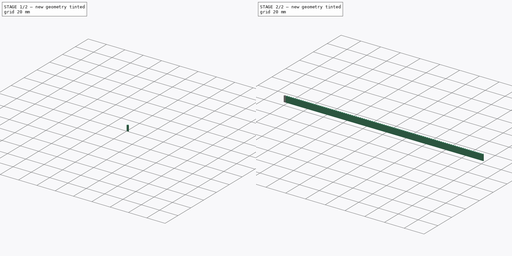
[diagram: build sequence overview — one tinted view per stage of 2, left to right]
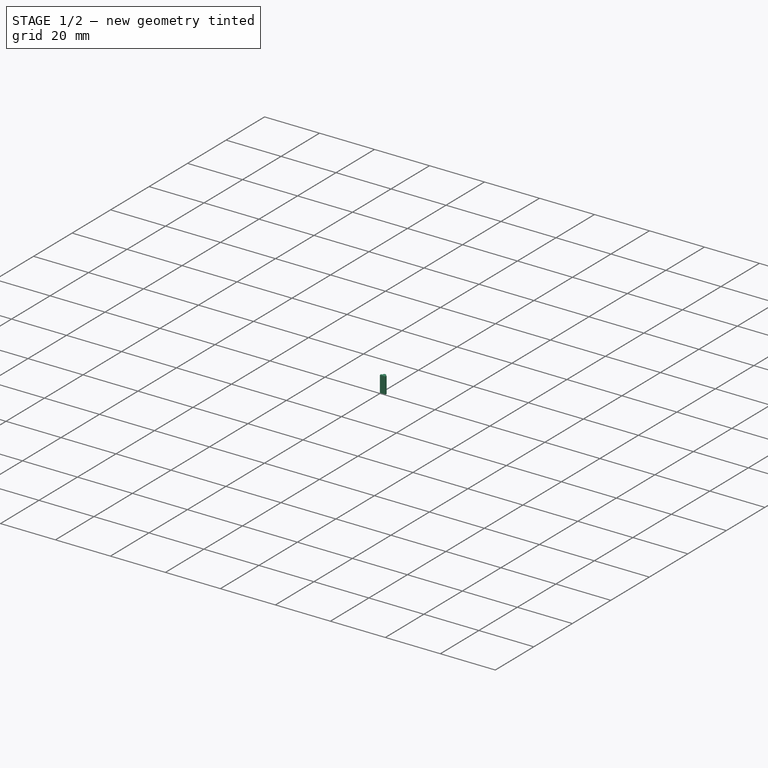
[diagram: stage 1 of 2 — iso view after this stage's code; geometry added in this stage tinted green]
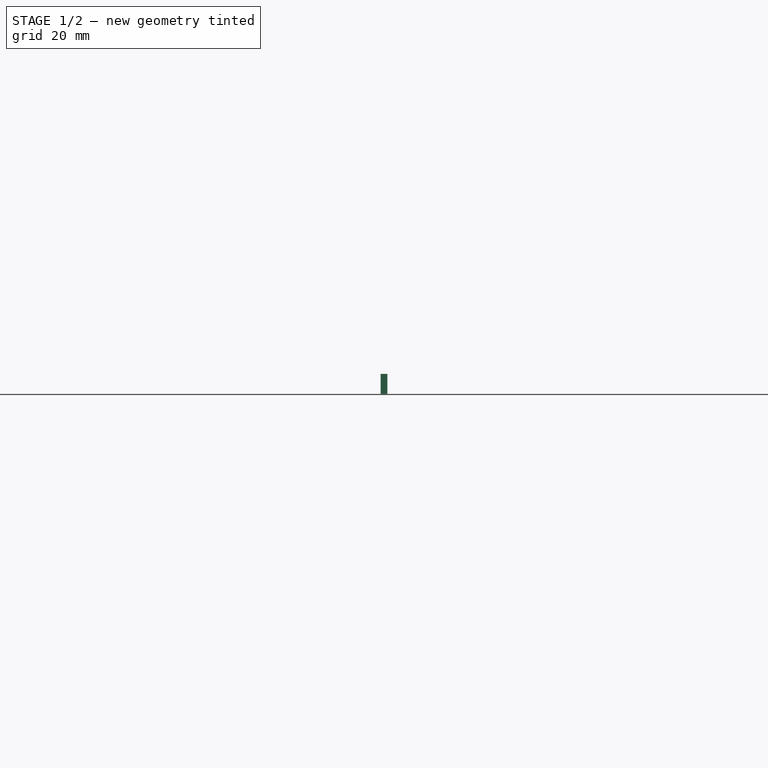
[diagram: stage 1 of 2 — front view after this stage's code; geometry added in this stage tinted green]
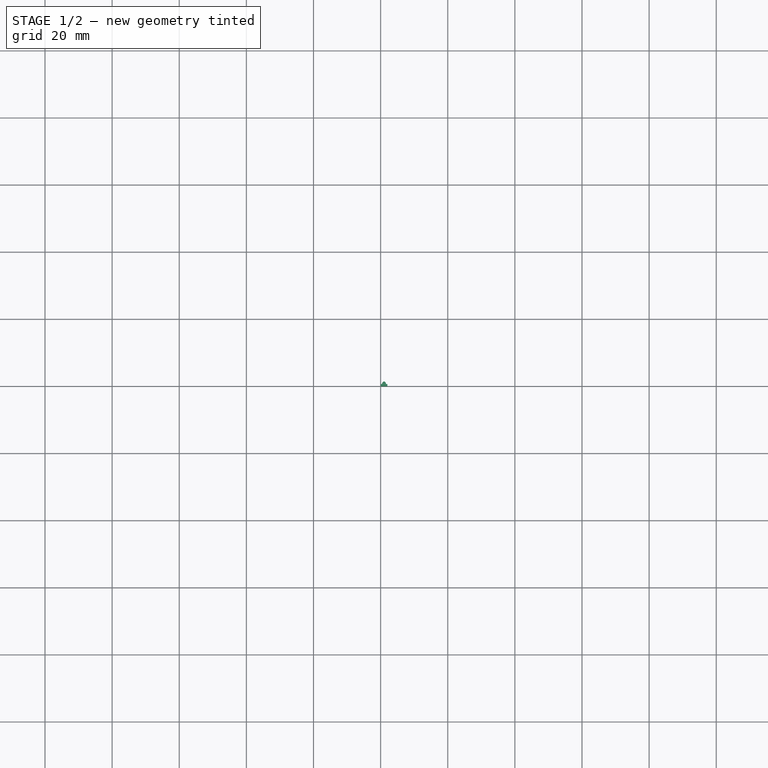
[diagram: stage 1 of 2 — top view after this stage's code; geometry added in this stage tinted green]
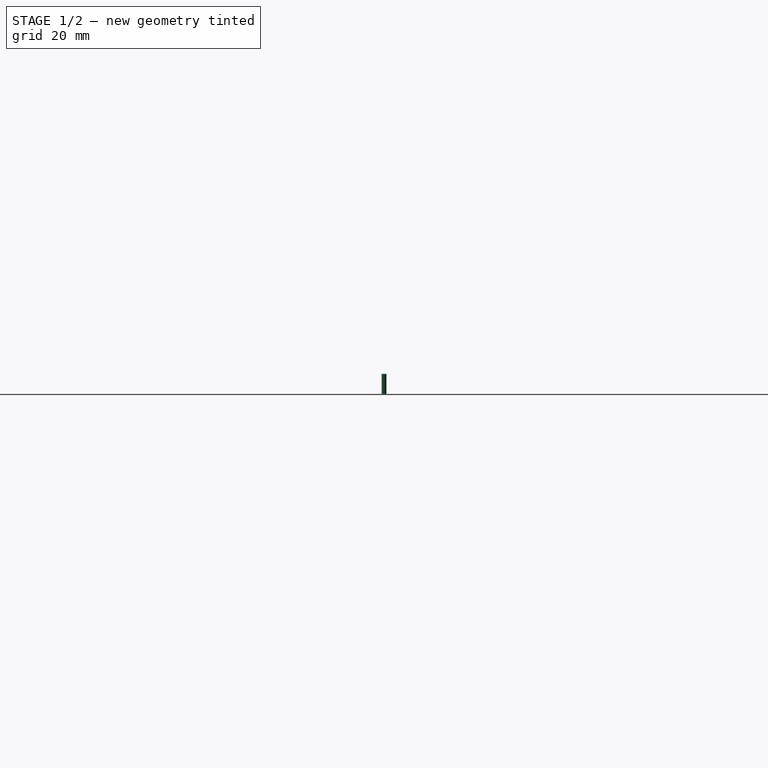
[diagram: stage 1 of 2 — right view after this stage's code; geometry added in this stage tinted green]
FCSTD DOCUMENT  (FreeCAD 0.19R23578 (Git))
Label: BELT_gt2
License: All rights reserved
LicenseURL: http://en.wikipedia.org/wiki/All_rights_reserved
objects: Sketcher::SketchObject×1, PartDesign::Pad×1, PartDesign::Body×1, Part::Part2DObjectPython×1, Part::FeaturePython×1
note: 6 computed .brp shape members not serialized (recipe doc carries the construction recipe); baked Part::Feature solids carry a one-line shape summary decoded from their .brp

FEATURE [Sketcher::SketchObject] Sketch
  MapMode = 5
  Support = -> [XY_Plane]
  sketch-geometry (15):
    g0: LineSegment StartX=0 StartY=0 StartZ=0 EndX=2 EndY=0 EndZ=0
    g1: LineSegment StartX=2 StartY=0 StartZ=0 EndX=2 EndY=0.63 EndZ=0
    g2: LineSegment StartX=0 StartY=0 StartZ=0 EndX=0 EndY=0.63 EndZ=0
    g3: LineSegment StartX=0 StartY=0.63 StartZ=0 EndX=0.35 EndY=0.63 EndZ=0
    g4: LineSegment StartX=0.35 StartY=0.63 StartZ=0 EndX=0.35 EndY=1.38 EndZ=0
    g5: LineSegment StartX=0.35 StartY=1.38 StartZ=0 EndX=1.65 EndY=1.38 EndZ=0
    g6: LineSegment StartX=1.65 StartY=1.38 StartZ=0 EndX=1.65 EndY=0.63 EndZ=0
    g7: LineSegment StartX=1.65 StartY=0.63 StartZ=0 EndX=2 EndY=0.63 EndZ=0
    g8: LineSegment StartX=1 StartY=1.38 StartZ=0 EndX=1 EndY=0 EndZ=0
    g9: ArcOfCircle CenterX=0.262844 CenterY=0.752081 CenterZ=0 NormalX=0 NormalY=0 NormalZ=1 AngleXU=0 Radius=0.15 StartAngle=5.33239 EndAngle=6.28319
    g10: ArcOfCircle CenterX=1.4 CenterY=0.592321 CenterZ=0 NormalX=0 NormalY=0 NormalZ=1 AngleXU=0 Radius=1 StartAngle=2.40968 EndAngle=2.98115
    g11: ArcOfCircle CenterX=1 CenterY=0.825 CenterZ=0 NormalX=0 NormalY=0 NormalZ=1 AngleXU=0 Radius=0.555 StartAngle=1.5708 EndAngle=2.23908
    g12: ArcOfCircle CenterX=1 CenterY=0.825 CenterZ=0 NormalX=0 NormalY=0 NormalZ=1 AngleXU=0 Radius=0.555 StartAngle=0.902511 EndAngle=1.5708
    g13: ArcOfCircle CenterX=0.6 CenterY=0.592321 CenterZ=0 NormalX=0 NormalY=0 NormalZ=1 AngleXU=0 Radius=1 StartAngle=0.160448 EndAngle=0.731908
    g14: ArcOfCircle CenterX=1.73716 CenterY=0.752081 CenterZ=0 NormalX=0 NormalY=0 NormalZ=1 AngleXU=0 Radius=0.15 StartAngle=3.14159 EndAngle=4.09238
  constraints (42):
    c: Coincident(g0,g-1)
    c: Horizontal(g0)
    c: Coincident(g1,g0)
    c: Vertical(g1)
    c: Coincident(g2,g0)
    c: Vertical(g2)
    c: Equal(g1,g2)
    c: DistanceX(g0,g0) = 2
    c: Horizontal(g3)
    c: Coincident(g3,g4)
    c: Vertical(g4)
    c: Coincident(g4,g5)
    c: Horizontal(g5)
    c: Coincident(g5,g6)
    c: Vertical(g6)
    c: Coincident(g6,g7)
    c: Coincident(g7,g1)
    c: Horizontal(g7)
    c: Equal(g7,g3)
    c: DistanceY(g4,g4) = 0.75
    c: PointOnObject(g8,g5)
    c: PointOnObject(g8,g0)
    c: Vertical(g8)
    c: DistanceX(g0,g8) = 1
    c: DistanceY(g0,g4) = 1.38
    c: Radius(g10) = 1
    c: DistanceX(g8,g10) = 0.4
    c: Coincident(g2,g3)
    c: Radius(g9) = 0.15
    c: PointOnObject(g11,g8)
    c: Coincident(g11,g10)
    c: Radius(g11) = 0.555
    c: Coincident(g11,g8)
    c: Coincident(g9,g3)
    c: DistanceX(g3,g3) = 0.35
    c: Coincident(g10,g9)
    c: Horizontal(g9,g9)
    c: Radius(g13) = 1
    c: Radius(g14) = 0.15
    c: Coincident(g12,g13)
    c: Radius(g12) = 0.555
    c: Coincident(g13,g14)
FEATURE [PartDesign::Pad] Pad
  Direction = (1,1,1)
  Length = 6
  Length2 = 100
  Profile = -> Sketch
  Type = 0
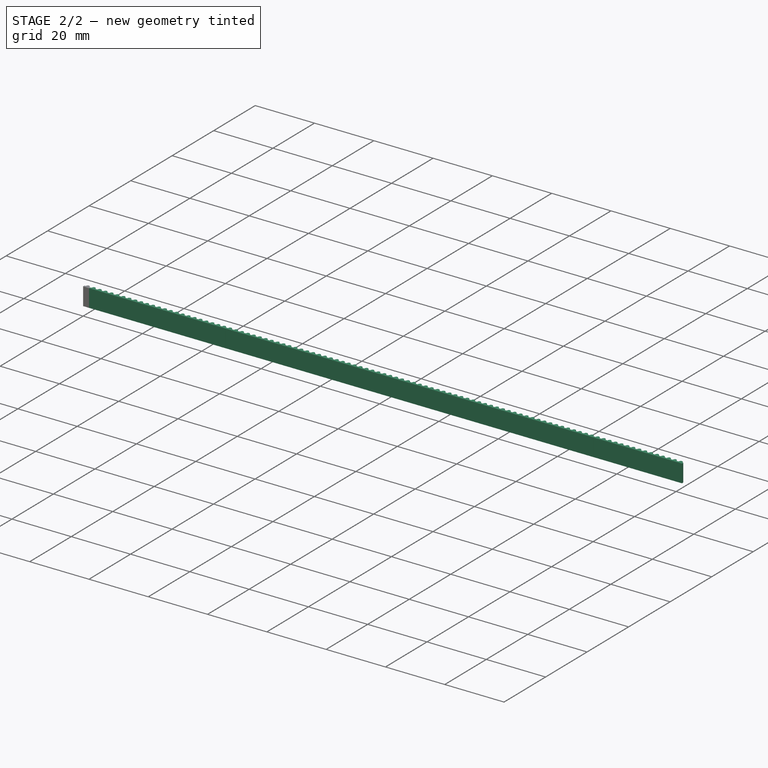
[diagram: stage 2 of 2 — iso view after this stage's code; geometry added in this stage tinted green]
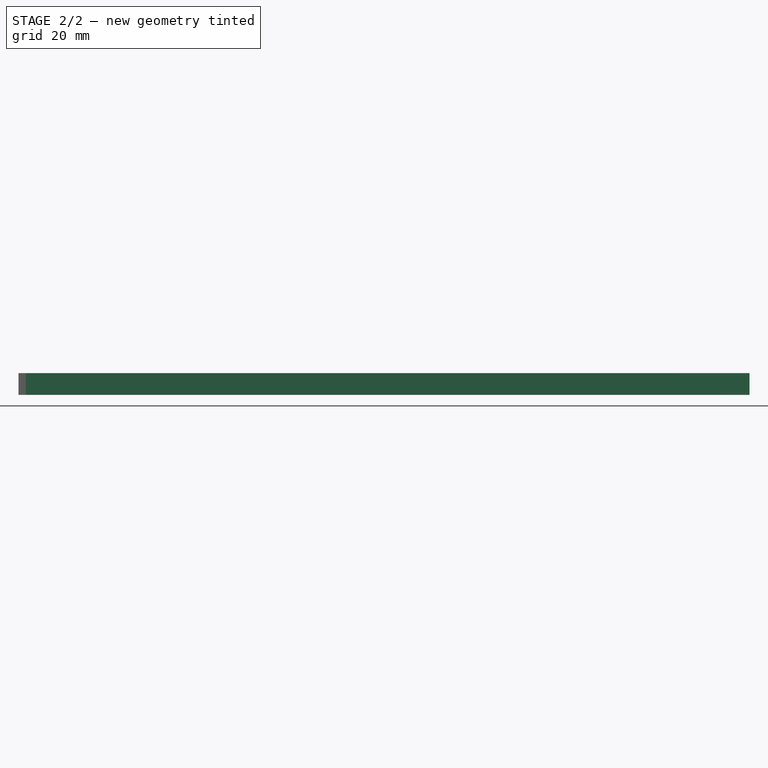
[diagram: stage 2 of 2 — front view after this stage's code; geometry added in this stage tinted green]
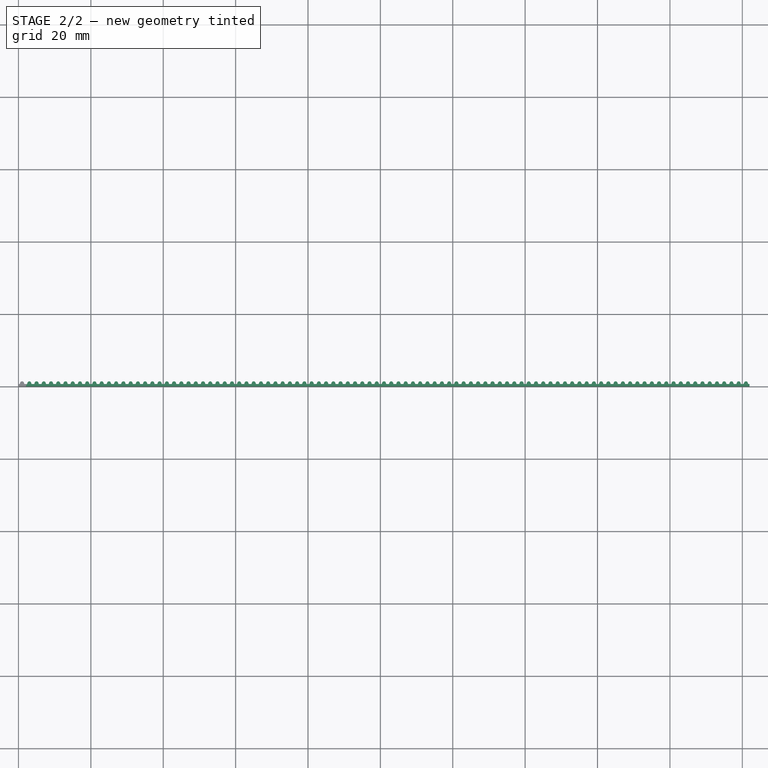
[diagram: stage 2 of 2 — top view after this stage's code; geometry added in this stage tinted green]
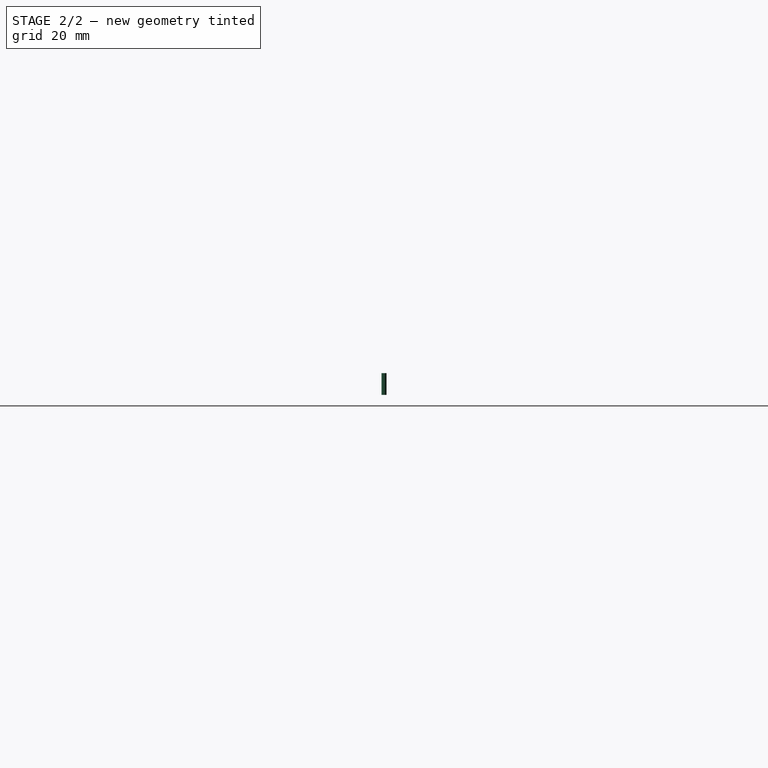
[diagram: stage 2 of 2 — right view after this stage's code; geometry added in this stage tinted green]
FEATURE [PartDesign::Body] Body
  Group = -> [Sketch,Pad]
  Origin = -> Origin
  Tip = -> Pad
FEATURE [Part::Part2DObjectPython] Line  # Draft 2D object (typed FeaturePython)
  Area = 0
  ChamferSize = 0
  Closed = false
  End = (200,1.22e-14,0)
  FilletRadius = 0
  Length = 200
  MakeFace = false
  Points = (2) [(0,0,0),(200,6.12323e-15,0)]
  Start = (0,0,0)
  Subdivisions = 0
FEATURE [Part::FeaturePython] PathArray  # WARN: FeaturePython — macro-defined, semantics opaque (R4)
  Align = false
  AlignMode = 0
  Base = -> Pad
  Count = 101
  ExtraTranslation = (0,0,0)
  ForceVertical = false
  PathObject = -> Line
  TangentVector = (1,0,0)
  VerticalVector = (0,0,1)
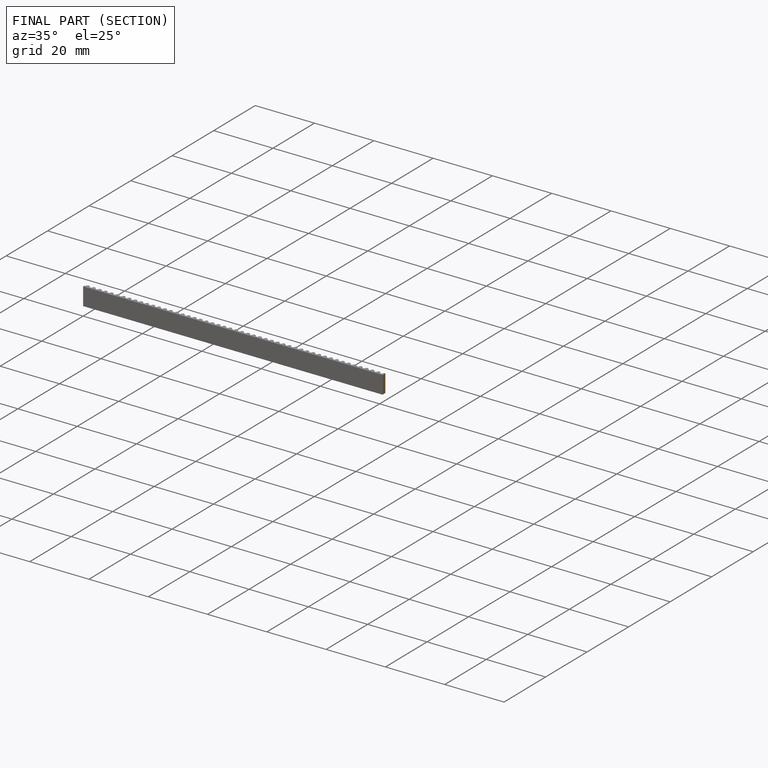
[diagram: finished part — half-section view (interior)]
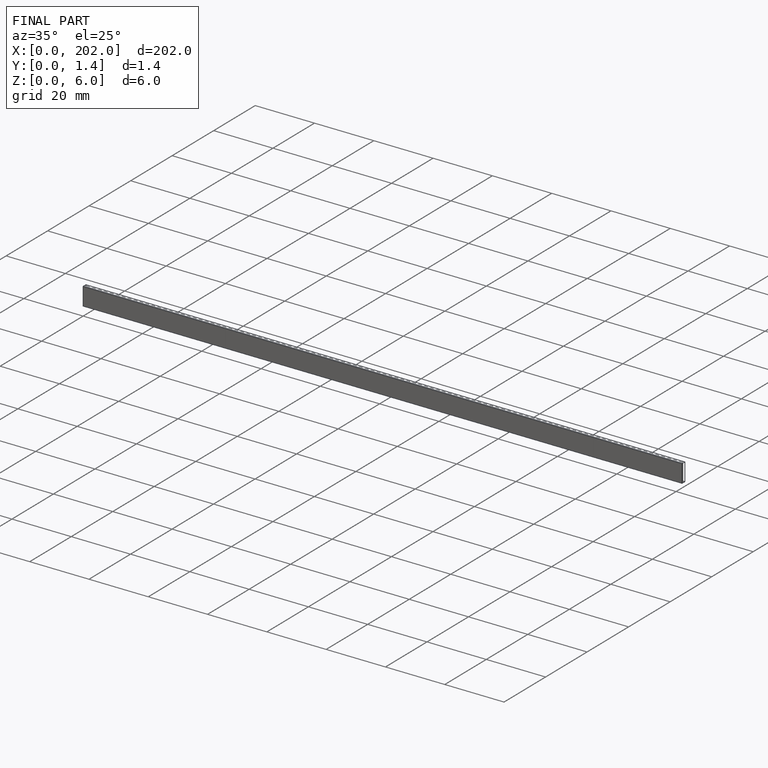
[diagram: finished part — iso view with bounding-box wireframe]
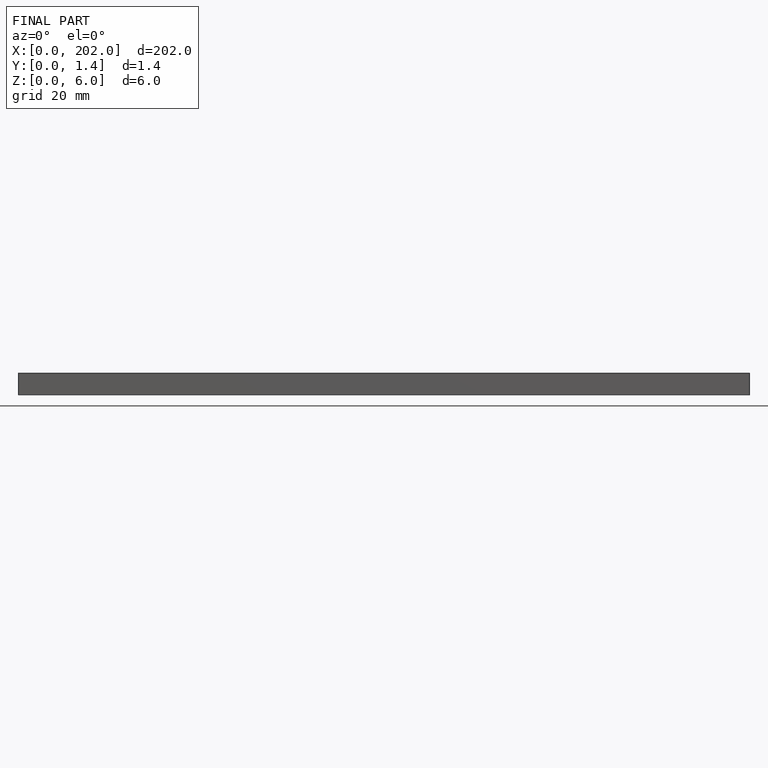
[diagram: finished part — front view with bounding-box wireframe]
